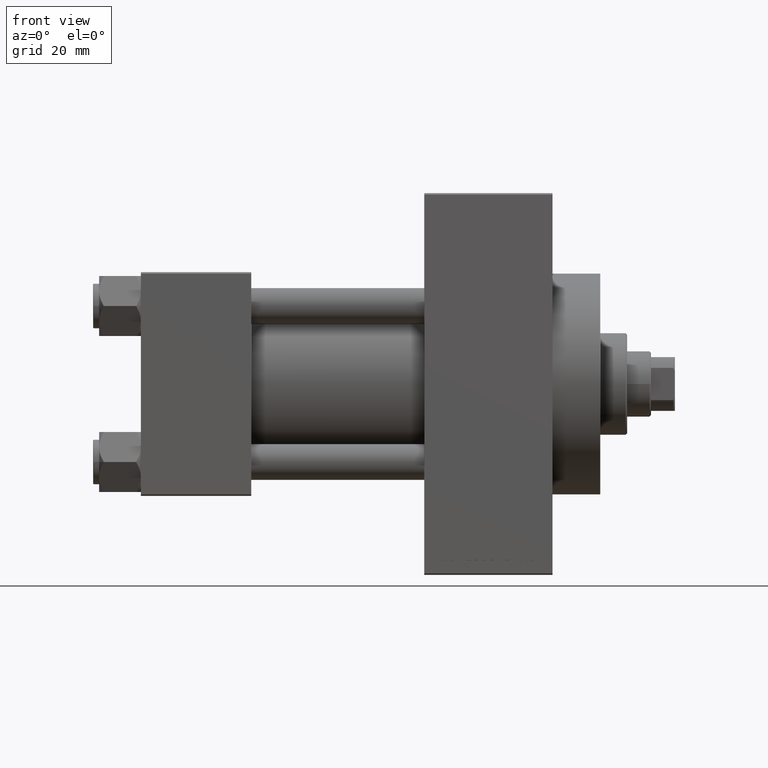
[diagram: clean part render]
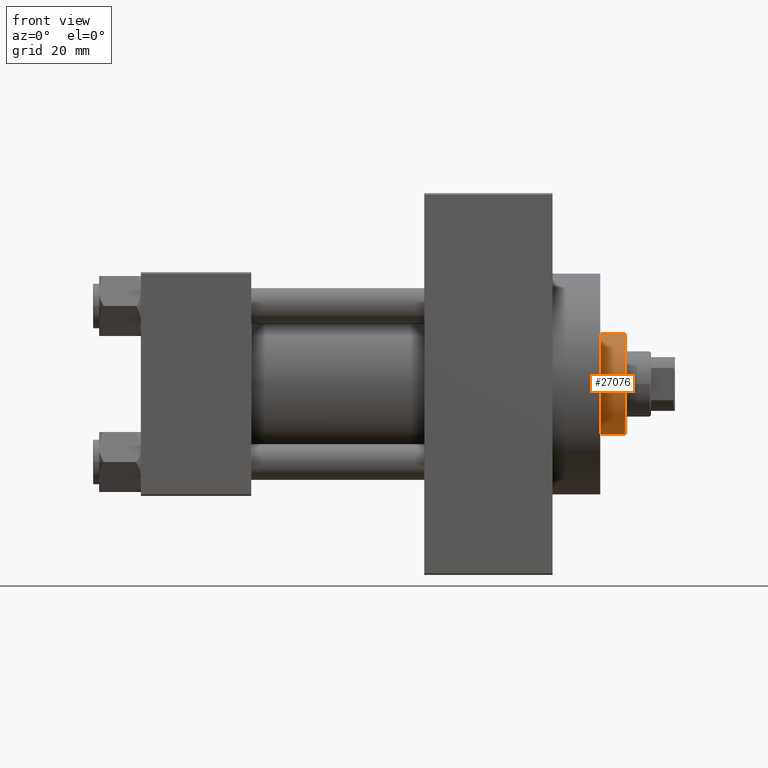
[diagram: same view with one face highlighted and labeled with its STEP entity id]
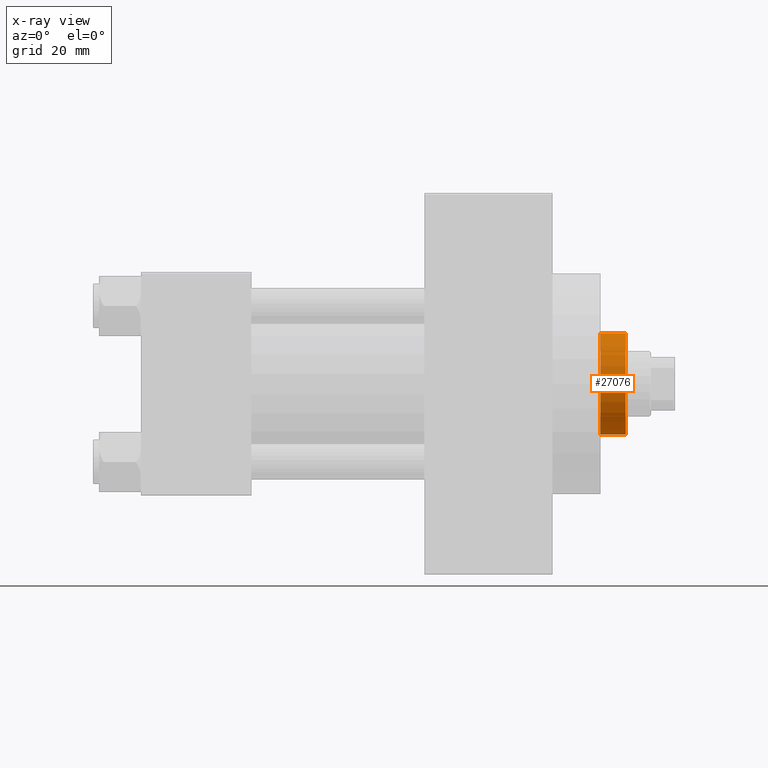
[diagram: x-ray of the same camera — body ghosted, the highlighted face saturated]
A machine part, front view. The second image highlights one B-rep face of the part: STEP entity #27076.
The next image is the same camera in x-ray: the body ghosted, the highlighted face saturated — about 0% of this face is hidden behind the body in this view.
In plain terms, the highlighted cylindrical surface (partial cylindrical patch) has radius 17 mm, axis along (-1, 0, 0).
Its self-contained STEP definition (entity closure, byte-faithful):
#882 = ORIENTED_EDGE ( 'NONE', *, *, #6720, .F. ) ;
#3605 = CARTESIAN_POINT ( 'NONE',  ( 17.00000000000000000, 2.081899558550500280E-15, 43.25999999999999801 ) ) ;
#5713 = FACE_OUTER_BOUND ( 'NONE', #8927, .T. ) ;
#6720 = EDGE_CURVE ( 'NONE', #16164, #39084, #35632, .T. ) ;
#8927 = EDGE_LOOP ( 'NONE', ( #46612, #11963, #38628, #882 ) ) ;
#9556 = DIRECTION ( 'NONE',  ( 1.000000000000000000, 0.000000000000000000, 0.000000000000000000 ) ) ;
#9905 = LINE ( 'NONE', #17077, #28613 ) ;
#11671 = EDGE_CURVE ( 'NONE', #44670, #35390, #9905, .T. ) ;
#11963 = ORIENTED_EDGE ( 'NONE', *, *, #11671, .T. ) ;
#12142 = CARTESIAN_POINT ( 'NONE',  ( 0.000000000000000000, 0.000000000000000000, 51.76000000000000512 ) ) ;
#13727 = DIRECTION ( 'NONE',  ( -0.000000000000000000, -0.000000000000000000, -1.000000000000000000 ) ) ;
#13907 = DIRECTION ( 'NONE',  ( -0.000000000000000000, -0.000000000000000000, -1.000000000000000000 ) ) ;
#14309 = AXIS2_PLACEMENT_3D ( 'NONE', #12142, #44850, #26225 ) ;
#16164 = VERTEX_POINT ( 'NONE', #17808 ) ;
#16912 = CYLINDRICAL_SURFACE ( 'NONE', #25980, 17.00000000000000000 ) ;
#17077 = CARTESIAN_POINT ( 'NONE',  ( 17.00000000000000000, 2.081899558550500280E-15, 52.25999999999999801 ) ) ;
#17701 = AXIS2_PLACEMENT_3D ( 'NONE', #42264, #45613, #9556 ) ;
#17731 = CARTESIAN_POINT ( 'NONE',  ( -17.00000000000000000, 0.000000000000000000, 43.25999999999999801 ) ) ;
#17808 = CARTESIAN_POINT ( 'NONE',  ( -17.00000000000000000, 0.000000000000000000, 51.76000000000000512 ) ) ;
#20661 = EDGE_CURVE ( 'NONE', #16164, #44670, #21915, .T. ) ;
#21915 = CIRCLE ( 'NONE', #14309, 17.00000000000000000 ) ;
#25980 = AXIS2_PLACEMENT_3D ( 'NONE', #42223, #31460, #35061 ) ;
#26225 = DIRECTION ( 'NONE',  ( 1.000000000000000000, 0.000000000000000000, 0.000000000000000000 ) ) ;
#27076 = ADVANCED_FACE ( 'NONE', ( #5713 ), #16912, .T. ) ;
#28613 = VECTOR ( 'NONE', #13727, 1000.000000000000000 ) ;
#31460 = DIRECTION ( 'NONE',  ( -0.000000000000000000, -0.000000000000000000, -1.000000000000000000 ) ) ;
#32739 = EDGE_CURVE ( 'NONE', #35390, #39084, #33044, .T. ) ;
#33044 = CIRCLE ( 'NONE', #17701, 17.00000000000000000 ) ;
#35061 = DIRECTION ( 'NONE',  ( -1.000000000000000000, 0.000000000000000000, 0.000000000000000000 ) ) ;
#35390 = VERTEX_POINT ( 'NONE', #3605 ) ;
#35632 = LINE ( 'NONE', #39208, #41420 ) ;
#38628 = ORIENTED_EDGE ( 'NONE', *, *, #32739, .T. ) ;
#39084 = VERTEX_POINT ( 'NONE', #17731 ) ;
#39208 = CARTESIAN_POINT ( 'NONE',  ( -17.00000000000000000, 0.000000000000000000, 52.25999999999999801 ) ) ;
#41420 = VECTOR ( 'NONE', #13907, 1000.000000000000000 ) ;
#42223 = CARTESIAN_POINT ( 'NONE',  ( 0.000000000000000000, 0.000000000000000000, 52.25999999999999801 ) ) ;
#42264 = CARTESIAN_POINT ( 'NONE',  ( 0.000000000000000000, 0.000000000000000000, 43.25999999999999801 ) ) ;
#42411 = CARTESIAN_POINT ( 'NONE',  ( 17.00000000000000000, 2.081899558550500280E-15, 51.76000000000000512 ) ) ;
#44670 = VERTEX_POINT ( 'NONE', #42411 ) ;
#44850 = DIRECTION ( 'NONE',  ( 0.000000000000000000, 0.000000000000000000, -1.000000000000000000 ) ) ;
#45613 = DIRECTION ( 'NONE',  ( 0.000000000000000000, 0.000000000000000000, 1.000000000000000000 ) ) ;
#46612 = ORIENTED_EDGE ( 'NONE', *, *, #20661, .T. ) ;